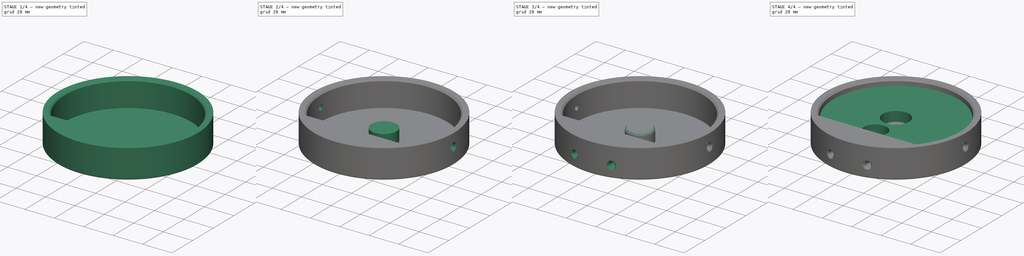
[diagram: build sequence overview — one tinted view per stage of 4, left to right]
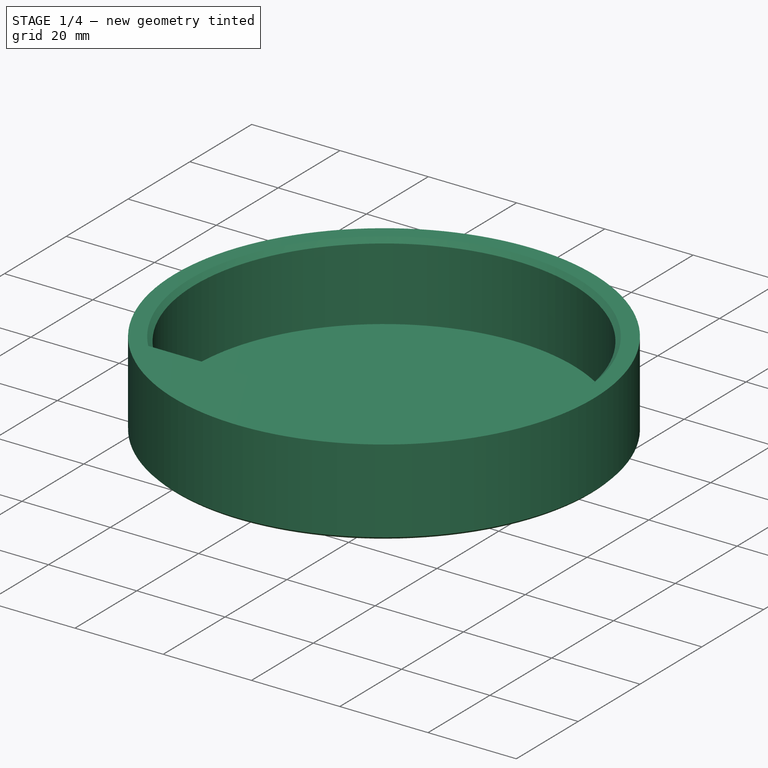
[diagram: stage 1 of 4 — iso view after this stage's code; geometry added in this stage tinted green]
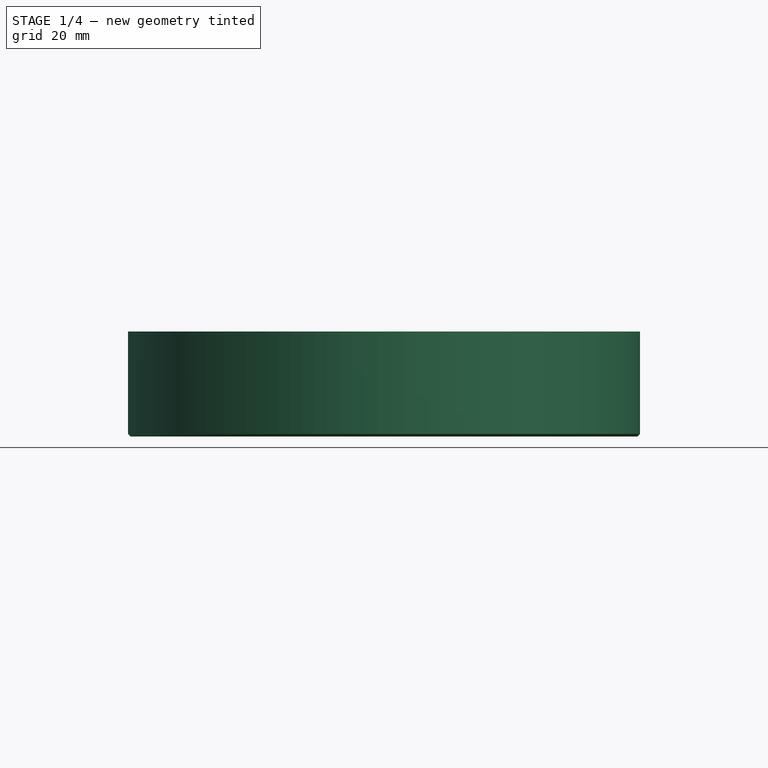
[diagram: stage 1 of 4 — front view after this stage's code; geometry added in this stage tinted green]
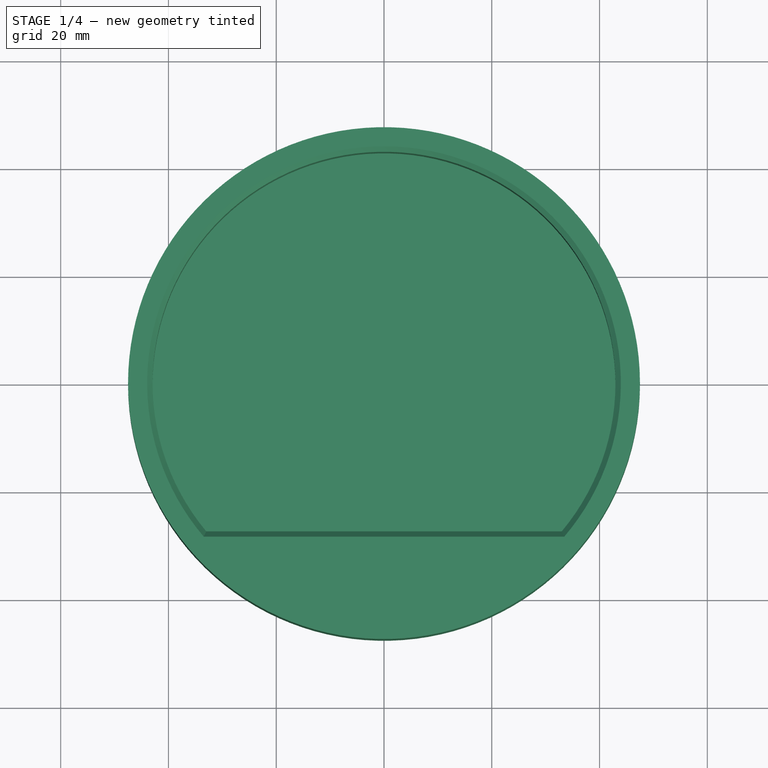
[diagram: stage 1 of 4 — top view after this stage's code; geometry added in this stage tinted green]
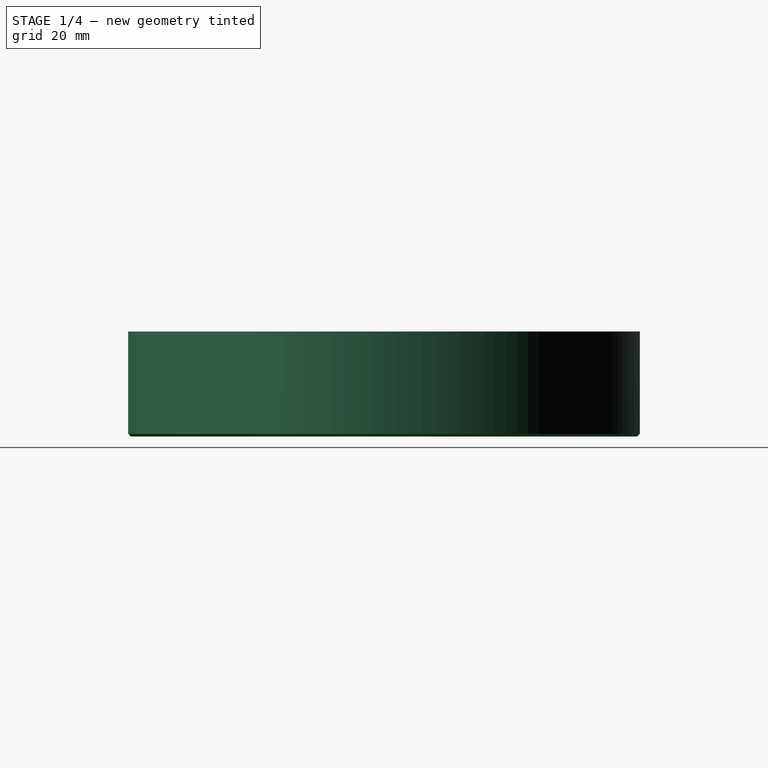
[diagram: stage 1 of 4 — right view after this stage's code; geometry added in this stage tinted green]
FCSTD DOCUMENT  (FreeCAD 1.0R39109 (Git))
Label: Colour Sensor Layer Jig
License: All rights reserved
LicenseURL: https://en.wikipedia.org/wiki/All_rights_reserved
objects: Sketcher::SketchObject×7, PartDesign::Chamfer×6, PartDesign::Pocket×4, PartDesign::Pad×3, PartDesign::Body×2, PartDesign::Plane×2, PartDesign::Fillet×1, App::VarSet×1
note: 60 computed .brp shape members not serialized (recipe doc carries the construction recipe); baked Part::Feature solids carry a one-line shape summary decoded from their .brp

FEATURE [PartDesign::Body] Body005  label="color_sensor_layer"
  AllowCompound = false
  Group = -> [Sketch007,Pad005,Fillet]
  Origin = -> Origin005
  Placement = pos=(0,0,8) rot=(0,0,1;0rad)
  Tip = -> Fillet
FEATURE [App::VarSet] VarSet
  Pipe_thickness = 5
  dowel_dia = 6.2
  fillet_radius = 1.5
  gem_hole_dia = 15.5
  gem_hole_offset = 20
  mdf_thickness = 7.5
  pipe_OD = 90
  rotation_tolerence = 2.5
  servo_leg_height = 24
  servo_length = 23
  servo_width = 12.3
  shaft_width = 9
  test_tube_dia = 17
  tube_inner_dia = 84.9
FEATURE [Sketcher::SketchObject] Sketch
  ArcFitTolerance = 1e-06
  AttachmentSupport = -> [XY_Plane]
  FullyConstrained = true
  MakeInternals = false
  MapMode = 5
  expr: Constraints[1] = 95
  sketch-geometry (1):
    g0: Circle CenterX=0 CenterY=0 CenterZ=0 NormalX=0 NormalY=0 NormalZ=1 AngleXU=0 Radius=47.5
  constraints (2):
    c: Coincident(g0,g-1)
    c: Diameter(g0) = 95
FEATURE [PartDesign::Pad] Pad
  Direction = (0,0,1)
  Length = 19.5
  Length2 = 10
  Profile = -> Sketch
  ReferenceAxis = -> Sketch [N_Axis]
  Refine = true
  Suppressed = false
  Type = 0
FEATURE [Sketcher::SketchObject] Sketch009
  ArcFitTolerance = 1e-06
  AttachmentSupport = -> [Pad]
  FullyConstrained = true
  MakeInternals = false
  MapMode = 5
  Placement = pos=(0,0,19.5) rot=(0,0,1;0rad)
  expr: Constraints[1] = 85.9 mm
  sketch-geometry (2):
    g0: ArcOfCircle CenterX=0 CenterY=0 CenterZ=0 NormalX=0 NormalY=0 NormalZ=1 AngleXU=0 Radius=42.95 StartAngle=5.58832 EndAngle=10.1196
    g1: LineSegment StartX=-32.9917 StartY=-27.5 StartZ=0 EndX=32.9917 EndY=-27.5 EndZ=0
  constraints (6):
    c: Coincident(g0,g-1)
    c: Diameter(g0) = 85.9
    c: Horizontal(g1)
    c: DistanceY(g1,g0) = 27.5
    c: Coincident(g0,g1)
    c: Coincident(g0,g1)
FEATURE [PartDesign::Pocket] Pocket
  BaseFeature = -> Pad
  Direction = (0,0,-1)
  Length = 17.5
  Length2 = 5
  Profile = -> Sketch009
  ReferenceAxis = -> Sketch009 [N_Axis]
  Refine = true
  Suppressed = false
  Type = 0
FEATURE [PartDesign::Chamfer] Chamfer
  Angle = 45
  Base = -> Pocket [Edge5,Edge4]
  BaseFeature = -> Pocket
  ChamferType = 0
  FlipDirection = false
  Refine = true
  Size = 1
  Size2 = 1
  SupportTransform = false
  Suppressed = false
  UseAllEdges = false
FEATURE [PartDesign::Chamfer] Chamfer001
  Angle = 45
  Base = -> Chamfer [Edge9]
  BaseFeature = -> Chamfer
  ChamferType = 0
  FlipDirection = false
  Refine = true
  Size = 0.5
  Size2 = 1
  SupportTransform = false
  Suppressed = false
  UseAllEdges = false
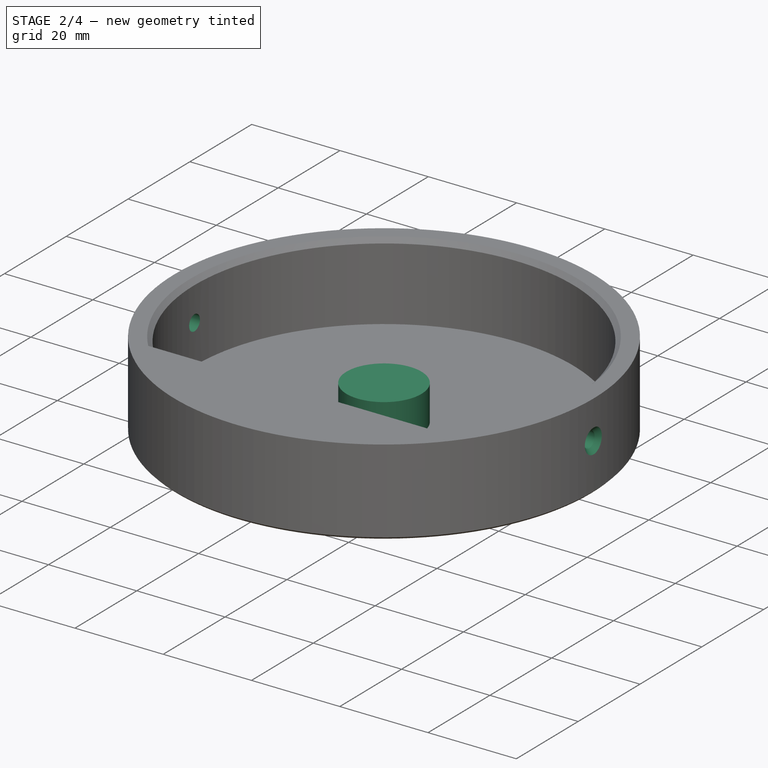
[diagram: stage 2 of 4 — iso view after this stage's code; geometry added in this stage tinted green]
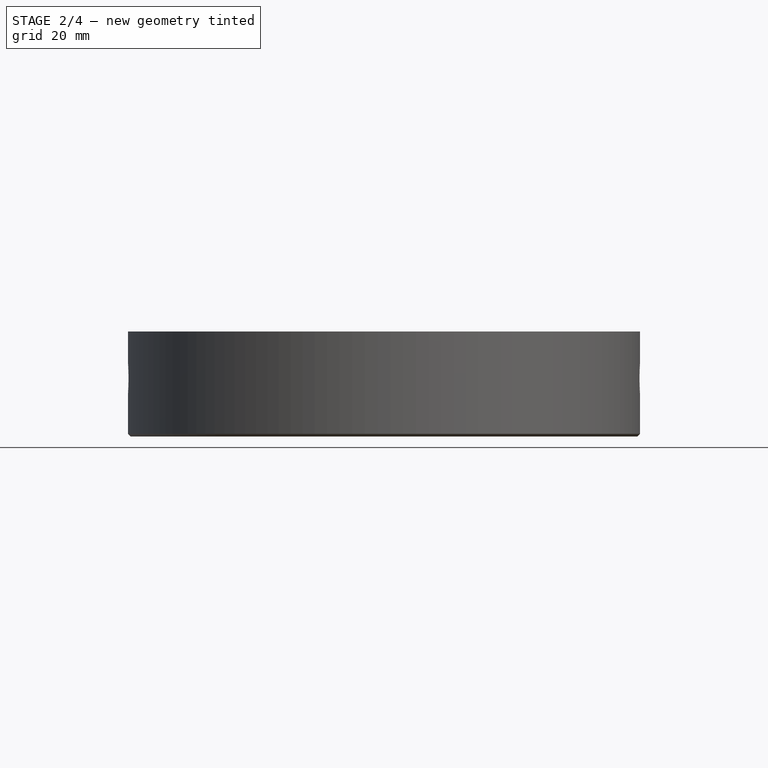
[diagram: stage 2 of 4 — front view after this stage's code; geometry added in this stage tinted green]
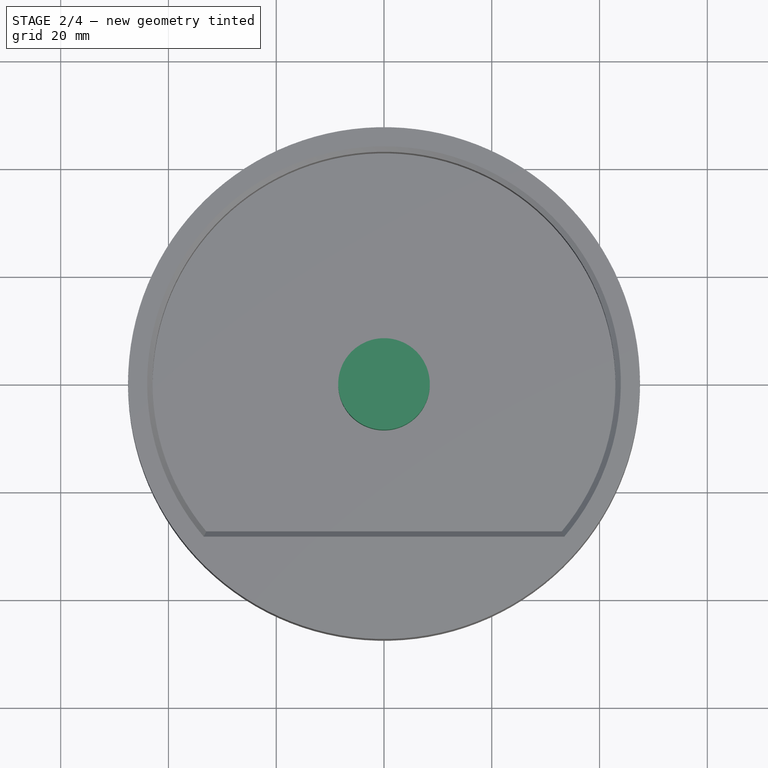
[diagram: stage 2 of 4 — top view after this stage's code; geometry added in this stage tinted green]
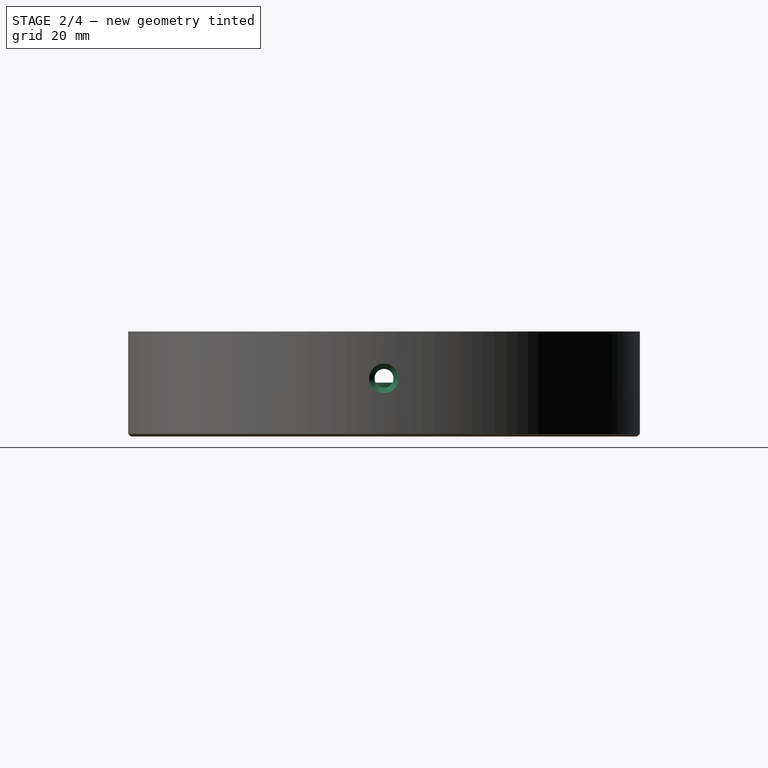
[diagram: stage 2 of 4 — right view after this stage's code; geometry added in this stage tinted green]
FEATURE [PartDesign::Plane] DatumPlane
  AttachmentOffset = pos=(50,0,0) rot=(0,1,0;1.5708rad)
  AttachmentSupport = -> [Chamfer001]
  Length = 62.2474
  MapMode = 5
  Placement = pos=(50,0,19.5) rot=(0,1,0;1.5708rad)
  ResizeMode = 0
  Width = 87.2474
FEATURE [PartDesign::Plane] DatumPlane001
  AttachmentOffset = pos=(0,-50,0) rot=(1,0,0;1.5708rad)
  AttachmentSupport = -> [Chamfer001]
  Length = 60
  MapMode = 5
  Placement = pos=(0,-50,19.5) rot=(1,0,0;1.5708rad)
  ResizeMode = 0
  Width = 60
FEATURE [Sketcher::SketchObject] Sketch010
  ArcFitTolerance = 1e-06
  AttachmentSupport = -> [DatumPlane]
  FullyConstrained = true
  MakeInternals = false
  MapMode = 5
  Placement = pos=(50,0,19.5) rot=(0,1,0;1.5708rad)
  sketch-geometry (1):
    g0: Circle CenterX=8.7 CenterY=0 CenterZ=0 NormalX=0 NormalY=0 NormalZ=1 AngleXU=0 Radius=1.75
  constraints (3):
    c: Diameter(g0) = 3.5
    c: PointOnObject(g0,g-1)
    c: DistanceX(g-1,g0) = 8.7
FEATURE [PartDesign::Pocket] Pocket001
  BaseFeature = -> Chamfer001
  Direction = (-1,0,-2e-16)
  Length = 150
  Length2 = 5
  Profile = -> Sketch010
  ReferenceAxis = -> Sketch010 [N_Axis]
  Refine = true
  Suppressed = false
  Type = 0
FEATURE [PartDesign::Chamfer] Chamfer002
  Angle = 45
  Base = -> Pocket001 [Edge6,Edge7]
  BaseFeature = -> Pocket001
  ChamferType = 0
  FlipDirection = false
  Refine = true
  Size = 1
  Size2 = 1
  SupportTransform = false
  Suppressed = false
  UseAllEdges = false
FEATURE [Sketcher::SketchObject] Sketch011
  ArcFitTolerance = 1e-06
  AttachmentSupport = -> [Chamfer002]
  FullyConstrained = true
  MakeInternals = false
  MapMode = 5
  Placement = pos=(0,0,2) rot=(0,0,1;0rad)
  sketch-geometry (1):
    g0: Circle CenterX=0 CenterY=0 CenterZ=0 NormalX=0 NormalY=0 NormalZ=1 AngleXU=0 Radius=8.5
  constraints (2):
    c: Coincident(g0,g-1)
    c: Diameter(g0) = 17
FEATURE [PartDesign::Pad] Pad006
  BaseFeature = -> Chamfer002
  Direction = (0,0,1)
  Length = 8
  Length2 = 10
  Profile = -> Sketch011
  ReferenceAxis = -> Sketch011 [N_Axis]
  Refine = true
  Suppressed = false
  Type = 0
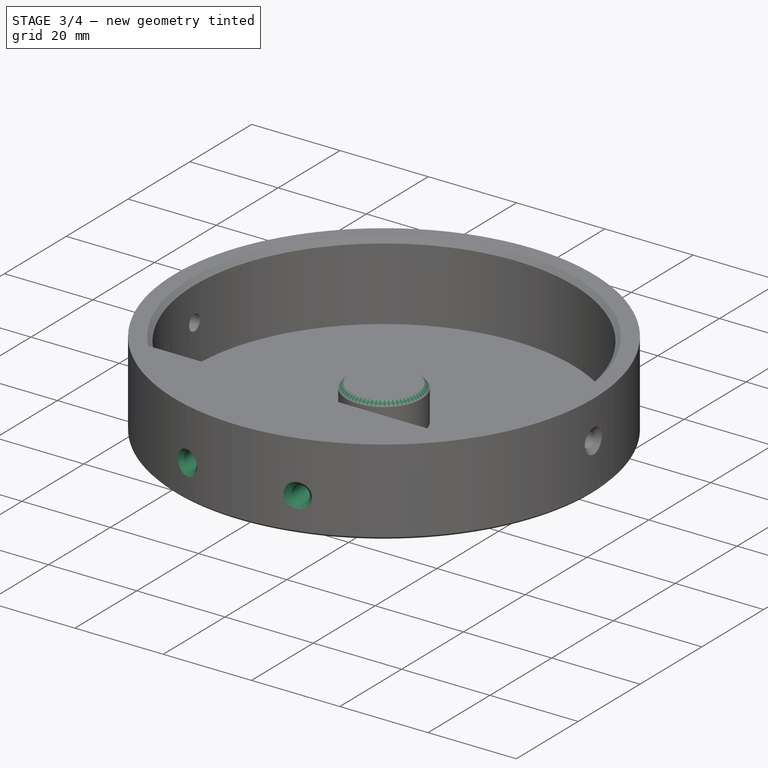
[diagram: stage 3 of 4 — iso view after this stage's code; geometry added in this stage tinted green]
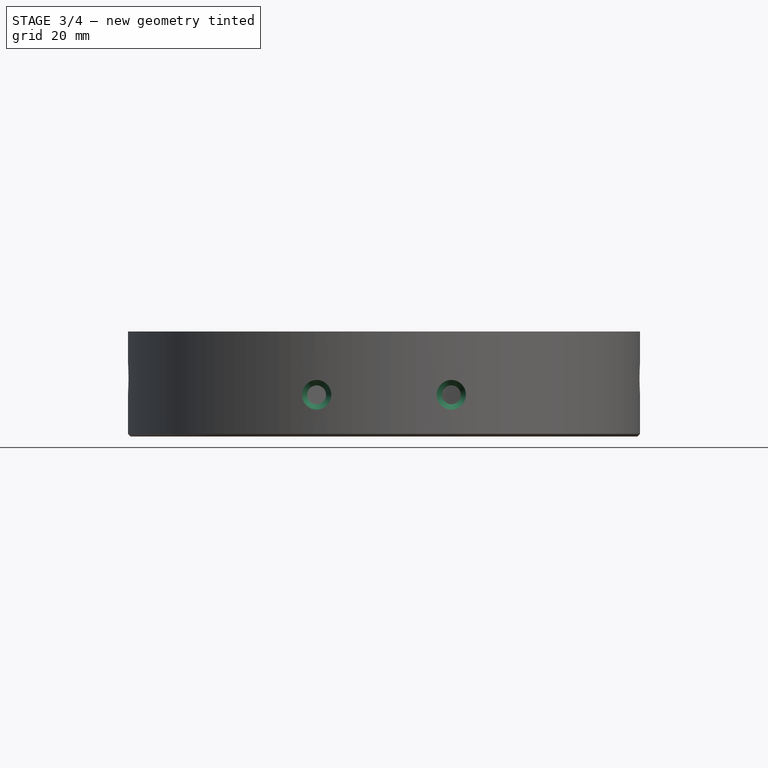
[diagram: stage 3 of 4 — front view after this stage's code; geometry added in this stage tinted green]
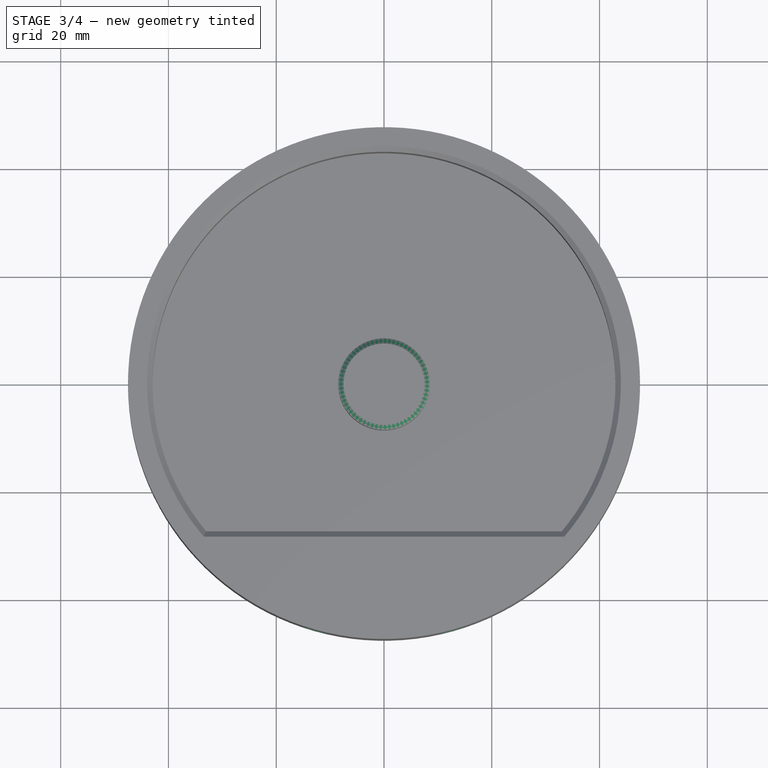
[diagram: stage 3 of 4 — top view after this stage's code; geometry added in this stage tinted green]
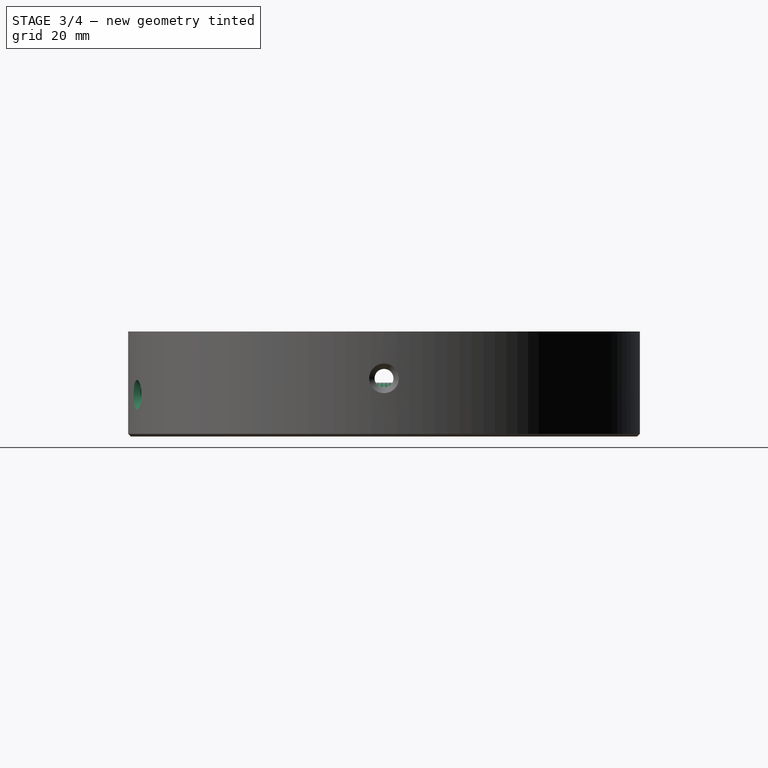
[diagram: stage 3 of 4 — right view after this stage's code; geometry added in this stage tinted green]
FEATURE [PartDesign::Chamfer] Chamfer003
  Angle = 45
  Base = -> Pad006 [Edge33]
  BaseFeature = -> Pad006
  ChamferType = 0
  FlipDirection = false
  Refine = true
  Size = 1
  Size2 = 1
  SupportTransform = false
  Suppressed = false
  UseAllEdges = false
FEATURE [Sketcher::SketchObject] Sketch012
  ArcFitTolerance = 1e-06
  AttachmentSupport = -> [DatumPlane001]
  FullyConstrained = true
  MakeInternals = false
  MapMode = 5
  Placement = pos=(0,-50,19.5) rot=(1,0,0;1.5708rad)
  sketch-geometry (3):
    g0: Circle CenterX=12.5 CenterY=-11.75 CenterZ=0 NormalX=0 NormalY=0 NormalZ=1 AngleXU=0 Radius=1.75
    g1: Circle CenterX=-12.5 CenterY=-11.75 CenterZ=0 NormalX=0 NormalY=0 NormalZ=1 AngleXU=0 Radius=1.75
    g2: LineSegment [constr] StartX=-12.5 StartY=-11.75 StartZ=0 EndX=12.5 EndY=-11.75 EndZ=0
  constraints (7):
    c: Diameter(g0) = 3.5
    c: Diameter(g1) = 3.5
    c: Coincident(g2,g1)
    c: Coincident(g2,g0)
    c: Symmetric(g1,g0,g-2)
    c: DistanceX(g2,g2) = 25
    c: DistanceY(g0,g-1) = 11.75
FEATURE [PartDesign::Pocket] Pocket002
  BaseFeature = -> Chamfer003
  Direction = (0,1,-2e-16)
  Length = 30
  Length2 = 5
  Profile = -> Sketch012
  ReferenceAxis = -> Sketch012 [N_Axis]
  Refine = true
  Suppressed = false
  Type = 0
FEATURE [PartDesign::Chamfer] Chamfer004
  Angle = 45
  Base = -> Pocket002 [Edge28,Edge26]
  BaseFeature = -> Pocket002
  ChamferType = 0
  FlipDirection = false
  Refine = true
  Size = 1
  Size2 = 1
  SupportTransform = false
  Suppressed = false
  UseAllEdges = false
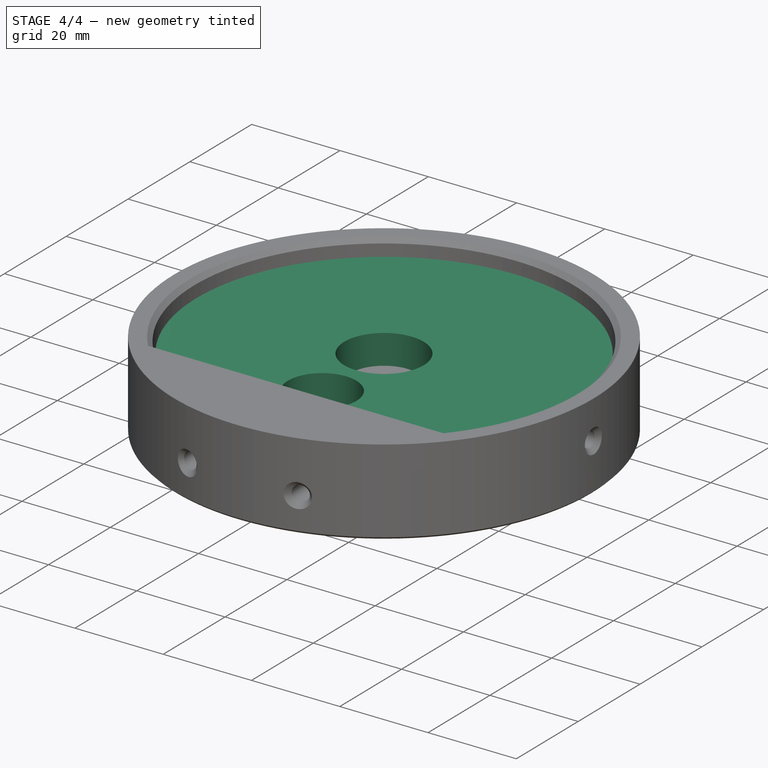
[diagram: stage 4 of 4 — iso view after this stage's code; geometry added in this stage tinted green]
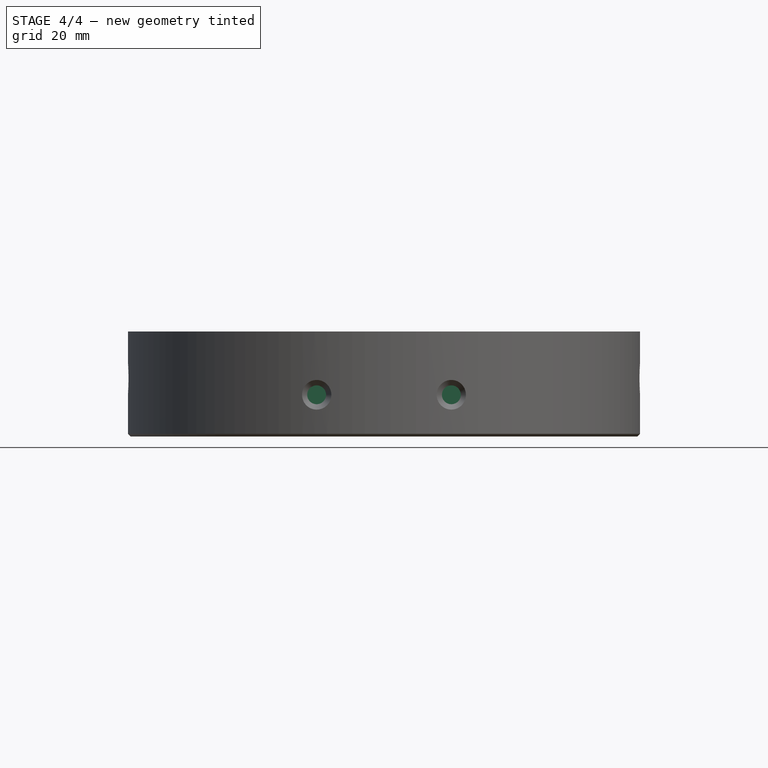
[diagram: stage 4 of 4 — front view after this stage's code; geometry added in this stage tinted green]
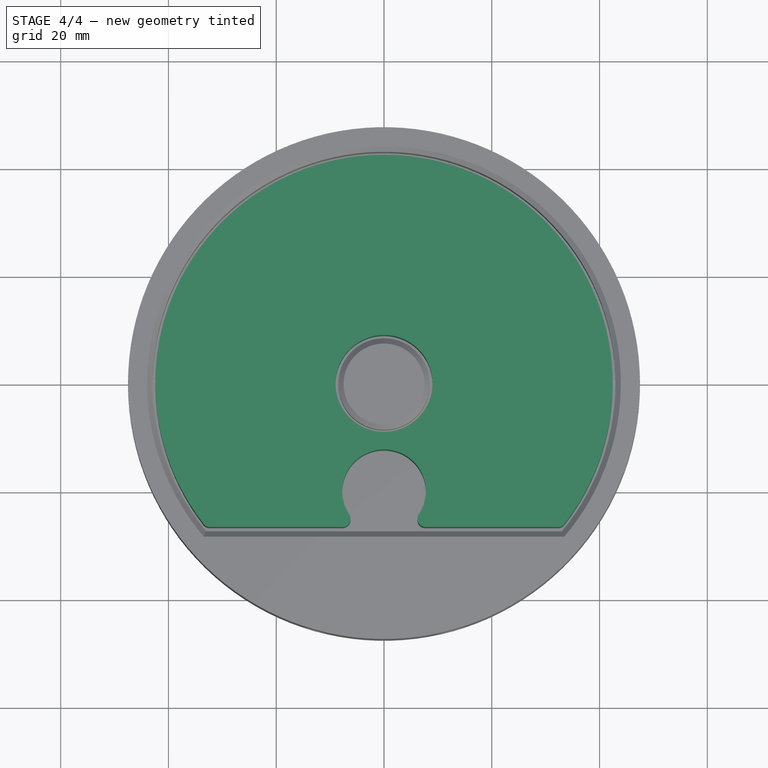
[diagram: stage 4 of 4 — top view after this stage's code; geometry added in this stage tinted green]
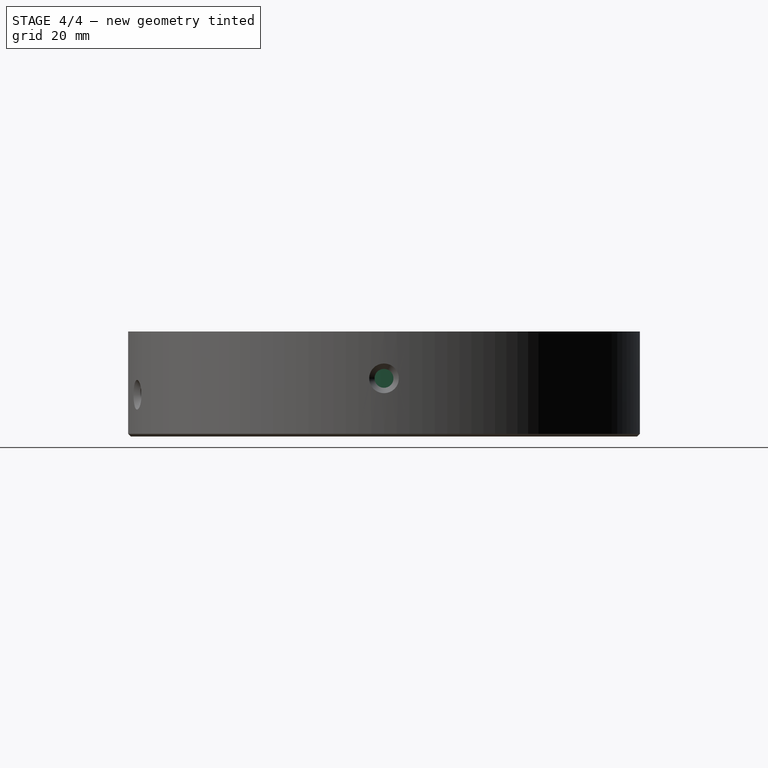
[diagram: stage 4 of 4 — right view after this stage's code; geometry added in this stage tinted green]
FEATURE [Sketcher::SketchObject] Sketch007
  ArcFitTolerance = 1e-06
  AttachmentSupport = -> [XY_Plane005]
  FullyConstrained = true
  MakeInternals = false
  MapMode = 5
  expr: Constraints[10] = VarSet.gem_hole_offset
  expr: Constraints[5] = VarSet.gem_hole_dia / 2
  expr: Constraints[8] = VarSet.tube_inner_dia / 2
  sketch-geometry (5):
    g0: LineSegment StartX=-33.0518 StartY=-26.638 StartZ=0 EndX=-4 EndY=-26.638 EndZ=0
    g1: LineSegment StartX=33.0518 StartY=-26.638 StartZ=0 EndX=4 EndY=-26.638 EndZ=0
    g2: ArcOfCircle CenterX=2.4e-15 CenterY=-20 CenterZ=0 NormalX=0 NormalY=0 NormalZ=1 AngleXU=0 Radius=7.75 StartAngle=5.25471 EndAngle=10.4532
    g3: ArcOfCircle CenterX=0 CenterY=0 CenterZ=0 NormalX=0 NormalY=0 NormalZ=1 AngleXU=0 Radius=42.45 StartAngle=5.60483 EndAngle=10.1031
    g4: Circle CenterX=0 CenterY=0 CenterZ=0 NormalX=0 NormalY=0 NormalZ=1 AngleXU=0 Radius=9
  constraints (14):
    c: Horizontal(g0)
    c: Horizontal(g1)
    c: Symmetric(g0,g1,g-2)
    c: Coincident(g2,g0)
    c: Coincident(g2,g1)
    c: Radius(g2) = 7.75
    c: Coincident(g3,g-1)
    c: Coincident(g3,g1)
    c: Radius(g3) = 42.45
    c: Coincident(g0,g3)
    c: Distance(g2,g-1) = 20
    c: DistanceX(g0,g1) = 8
    c: Coincident(g4,g3)
    c: Diameter(g4) = 18
FEATURE [PartDesign::Pad] Pad005
  Direction = (0,0,1)
  Length = 16
  Length2 = 10
  Profile = -> Sketch007
  ReferenceAxis = -> Sketch007 [N_Axis]
  Refine = true
  Suppressed = false
  Type = 0
FEATURE [PartDesign::Fillet] Fillet
  Base = -> Pad005 [Edge5,Edge8,Edge2,Edge1]
  BaseFeature = -> Pad005
  Radius = 1.5
  Refine = true
  SupportTransform = false
  Suppressed = false
  UseAllEdges = false
  expr: Radius = VarSet.fillet_radius
FEATURE [Sketcher::SketchObject] Sketch013
  ArcFitTolerance = 1e-06
  AttachmentSupport = -> [Chamfer004]
  FullyConstrained = true
  MakeInternals = false
  MapMode = 5
  Placement = pos=(0,0,2) rot=(0,0,1;0rad)
  sketch-geometry (1):
    g0: Circle CenterX=0 CenterY=36.3 CenterZ=0 NormalX=0 NormalY=0 NormalZ=1 AngleXU=0 Radius=5
  constraints (3):
    c: Diameter(g0) = 10
    c: PointOnObject(g0,g-2)
    c: DistanceY(g-1,g0) = 36.3
FEATURE [PartDesign::Pocket] Pocket003
  BaseFeature = -> Chamfer004
  Direction = (0,0,-1)
  Length = 5
  Length2 = 5
  Profile = -> Sketch013
  ReferenceAxis = -> Sketch013 [N_Axis]
  Refine = true
  Suppressed = false
  Type = 0
FEATURE [PartDesign::Chamfer] Chamfer005
  Angle = 45
  Base = -> Pocket003 [Edge46]
  BaseFeature = -> Pocket003
  ChamferType = 0
  FlipDirection = false
  Refine = true
  Size = 1
  Size2 = 1
  SupportTransform = false
  Suppressed = false
  UseAllEdges = false
FEATURE [PartDesign::Body] Body  label="Colour Sensor Layer Jig"
  AllowCompound = false
  Group = -> [Sketch,Pad,Sketch009,Pocket,Chamfer,Chamfer001,DatumPlane,DatumPlane001,Sketch010,Pocket001,Chamfer002,Sketch011,Pad006,Chamfer003,Sketch012,Pocket002,Chamfer004,Sketch013,Pocket003,Chamfer005]
  Origin = -> Origin
  Tip = -> Chamfer005
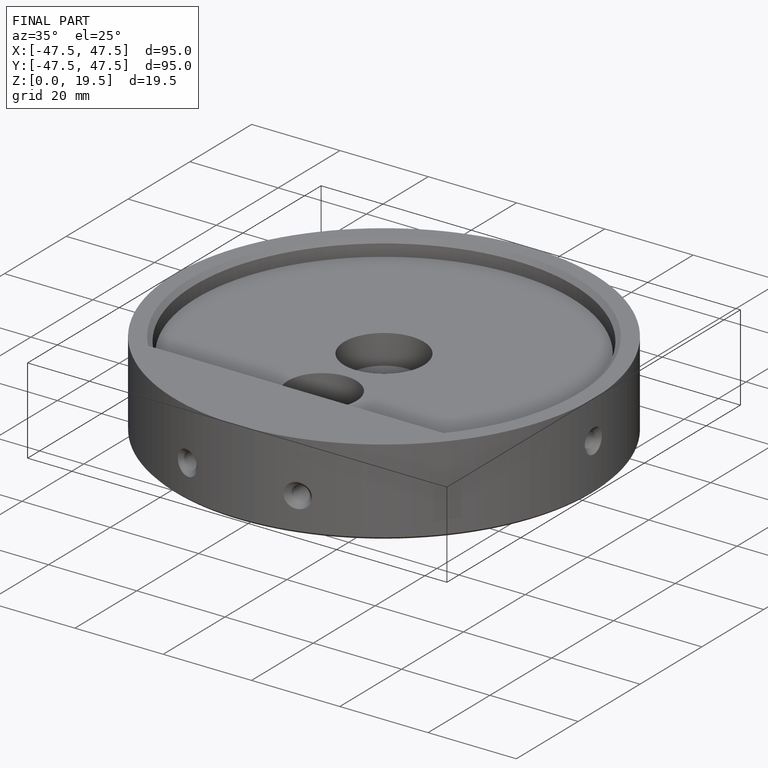
[diagram: finished part — iso view with bounding-box wireframe]
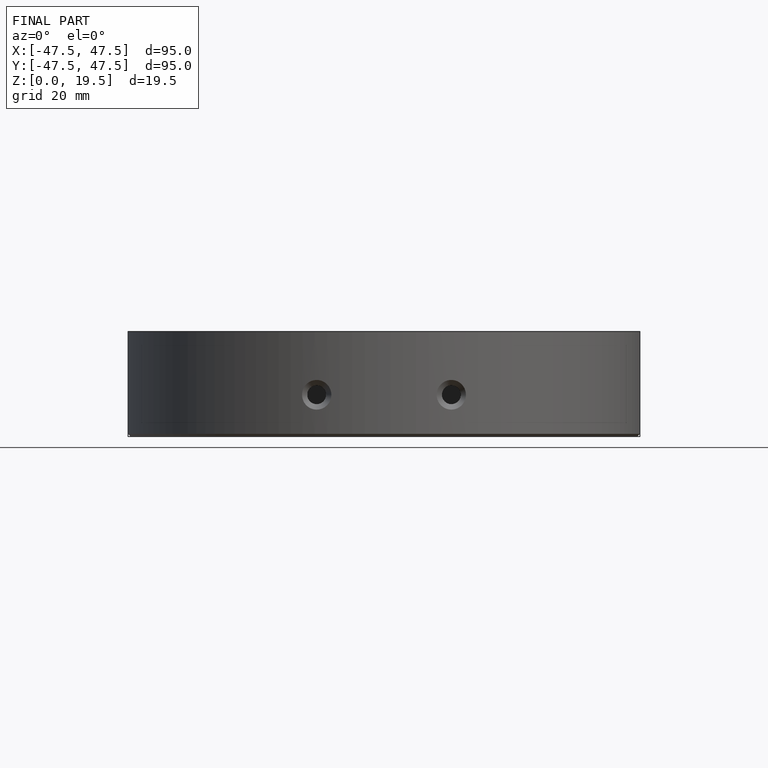
[diagram: finished part — front view with bounding-box wireframe]
